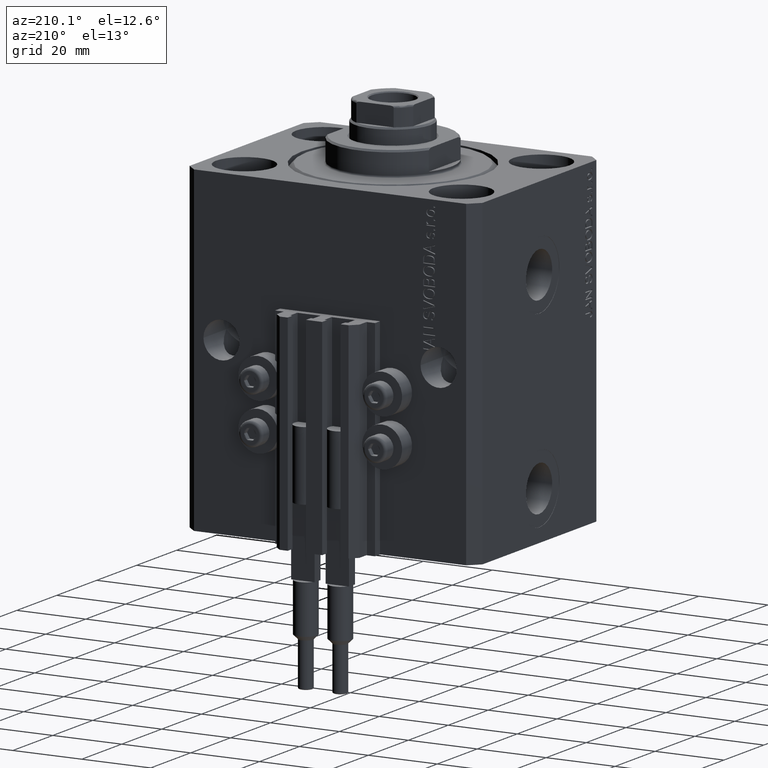
[diagram: clean part render]
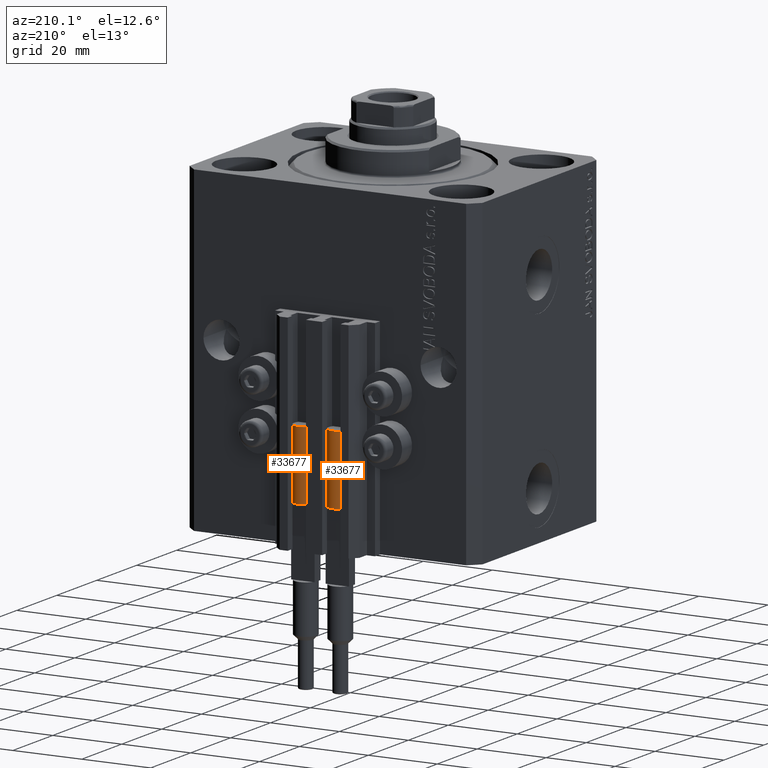
[diagram: same view with one multi-face feature highlighted, each face labeled with its STEP entity id]
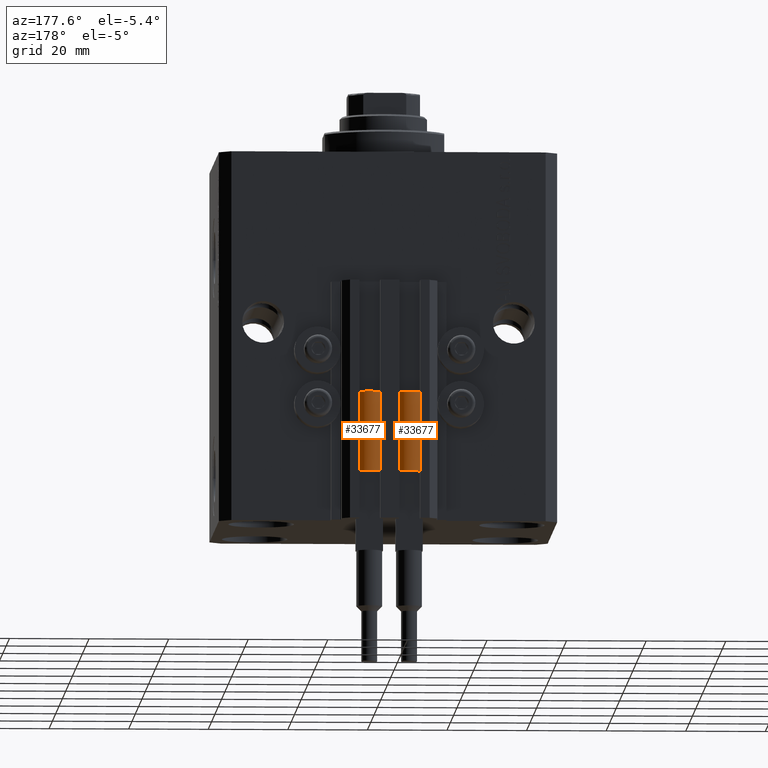
[diagram: same view with one multi-face feature highlighted, each face labeled with its STEP entity id]
A machine part, auxiliary view. The highlighted faces form ONE feature: a constant-radius fillet chain: 2 tangent blend faces with common blend radius 3.4 mm. The faces share edges in the B-rep.
A second angle (auxiliary view) of the same feature is appended — it is thin or edge-on in the first view.
Their STEP definitions:
[1] entity #33677 (Cylinder):
#1039 = DIRECTION ( 'NONE',  ( 1.000000000000000000, 0.000000000000000000, 0.000000000000000000 ) ) ;
#1324 = EDGE_CURVE ( 'NONE', #15781, #2618, #10314, .T. ) ;
#2573 = DIRECTION ( 'NONE',  ( 1.000000000000000000, 0.000000000000000000, 0.000000000000000000 ) ) ;
#2618 = VERTEX_POINT ( 'NONE', #33298 ) ;
#2791 = CARTESIAN_POINT ( 'NONE',  ( 3.051229260478471428, 1.500000000000000000, 20.00000000000000000 ) ) ;
#3567 = AXIS2_PLACEMENT_3D ( 'NONE', #43761, #40303, #47958 ) ;
#3773 = ORIENTED_EDGE ( 'NONE', *, *, #6563, .F. ) ;
#3987 = DIRECTION ( 'NONE',  ( 0.000000000000000000, 0.000000000000000000, 1.000000000000000000 ) ) ;
#6563 = EDGE_CURVE ( 'NONE', #34178, #27882, #40591, .T. ) ;
#7559 = LINE ( 'NONE', #18946, #7706 ) ;
#7706 = VECTOR ( 'NONE', #29836, 1000.000000000000000 ) ;
#10123 = AXIS2_PLACEMENT_3D ( 'NONE', #18164, #13957, #2573 ) ;
#10314 = LINE ( 'NONE', #25424, #12034 ) ;
#11687 = CARTESIAN_POINT ( 'NONE',  ( 0.000000000000000000, 0.000000000000000000, 20.00000000000000000 ) ) ;
#12034 = VECTOR ( 'NONE', #40528, 1000.000000000000000 ) ;
#12602 = VERTEX_POINT ( 'NONE', #46532 ) ;
#13957 = DIRECTION ( 'NONE',  ( 0.000000000000000000, 0.000000000000000000, 1.000000000000000000 ) ) ;
#14890 = DIRECTION ( 'NONE',  ( 1.000000000000000000, 0.000000000000000000, 0.000000000000000000 ) ) ;
#14911 = DIRECTION ( 'NONE',  ( 1.000000000000000000, 0.000000000000000000, 0.000000000000000000 ) ) ;
#15781 = VERTEX_POINT ( 'NONE', #46686 ) ;
#17171 = AXIS2_PLACEMENT_3D ( 'NONE', #34434, #3987, #14890 ) ;
#17188 = CIRCLE ( 'NONE', #22694, 3.400000000000000355 ) ;
#17221 = CIRCLE ( 'NONE', #10123, 3.400000000000000355 ) ;
#17414 = EDGE_CURVE ( 'NONE', #27882, #15781, #17221, .T. ) ;
#17589 = ORIENTED_EDGE ( 'NONE', *, *, #1324, .F. ) ;
#18164 = CARTESIAN_POINT ( 'NONE',  ( 0.000000000000000000, 0.000000000000000000, 20.00000000000000000 ) ) ;
#18946 = CARTESIAN_POINT ( 'NONE',  ( 3.400000000000000355, 4.163799117101001052E-16, 20.00000000000000000 ) ) ;
#19241 = AXIS2_PLACEMENT_3D ( 'NONE', #11687, #23062, #14911 ) ;
#19598 = EDGE_CURVE ( 'NONE', #20642, #2618, #17188, .T. ) ;
#20146 = EDGE_LOOP ( 'NONE', ( #35643, #25648, #25454, #17589, #35878, #3773 ) ) ;
#20642 = VERTEX_POINT ( 'NONE', #32517 ) ;
#22694 = AXIS2_PLACEMENT_3D ( 'NONE', #23069, #27280, #1039 ) ;
#23062 = DIRECTION ( 'NONE',  ( 0.000000000000000000, 0.000000000000000000, 1.000000000000000000 ) ) ;
#23069 = CARTESIAN_POINT ( 'NONE',  ( 0.000000000000000000, 0.000000000000000000, 0.000000000000000000 ) ) ;
#25424 = CARTESIAN_POINT ( 'NONE',  ( -3.400000000000000355, 0.000000000000000000, 20.00000000000000000 ) ) ;
#25454 = ORIENTED_EDGE ( 'NONE', *, *, #19598, .T. ) ;
#25648 = ORIENTED_EDGE ( 'NONE', *, *, #41748, .T. ) ;
#27280 = DIRECTION ( 'NONE',  ( 0.000000000000000000, 0.000000000000000000, 1.000000000000000000 ) ) ;
#27882 = VERTEX_POINT ( 'NONE', #36684 ) ;
#28171 = CYLINDRICAL_SURFACE ( 'NONE', #3567, 3.400000000000000355 ) ;
#29836 = DIRECTION ( 'NONE',  ( -0.000000000000000000, -0.000000000000000000, -1.000000000000000000 ) ) ;
#32517 = CARTESIAN_POINT ( 'NONE',  ( 3.400000000000000355, 4.163799117101001052E-16, 0.000000000000000000 ) ) ;
#33298 = CARTESIAN_POINT ( 'NONE',  ( -3.400000000000000355, 0.000000000000000000, 0.000000000000000000 ) ) ;
#33677 = ADVANCED_FACE ( 'NONE', ( #47230 ), #28171, .T. ) ;
#34178 = VERTEX_POINT ( 'NONE', #2791 ) ;
#34434 = CARTESIAN_POINT ( 'NONE',  ( 0.000000000000000000, 0.000000000000000000, 20.00000000000000000 ) ) ;
#35643 = ORIENTED_EDGE ( 'NONE', *, *, #37250, .F. ) ;
#35878 = ORIENTED_EDGE ( 'NONE', *, *, #17414, .F. ) ;
#36684 = CARTESIAN_POINT ( 'NONE',  ( -3.051229260478471428, 1.500000000000000000, 20.00000000000000000 ) ) ;
#37250 = EDGE_CURVE ( 'NONE', #12602, #34178, #42485, .T. ) ;
#40303 = DIRECTION ( 'NONE',  ( -0.000000000000000000, -0.000000000000000000, -1.000000000000000000 ) ) ;
#40528 = DIRECTION ( 'NONE',  ( -0.000000000000000000, -0.000000000000000000, -1.000000000000000000 ) ) ;
#40591 = CIRCLE ( 'NONE', #19241, 3.400000000000000355 ) ;
#41748 = EDGE_CURVE ( 'NONE', #12602, #20642, #7559, .T. ) ;
#42485 = CIRCLE ( 'NONE', #17171, 3.400000000000000355 ) ;
#43761 = CARTESIAN_POINT ( 'NONE',  ( 0.000000000000000000, 0.000000000000000000, 20.00000000000000000 ) ) ;
#46532 = CARTESIAN_POINT ( 'NONE',  ( 3.400000000000000355, 0.000000000000000000, 20.00000000000000000 ) ) ;
#46686 = CARTESIAN_POINT ( 'NONE',  ( -3.399999999999999467, -4.915049848600952119E-16, 20.00000000000000000 ) ) ;
#47230 = FACE_OUTER_BOUND ( 'NONE', #20146, .T. ) ;
#47958 = DIRECTION ( 'NONE',  ( -1.000000000000000000, 0.000000000000000000, 0.000000000000000000 ) ) ;
[2] entity #33677 (Cylinder):
#1039 = DIRECTION ( 'NONE',  ( 1.000000000000000000, 0.000000000000000000, 0.000000000000000000 ) ) ;
#1324 = EDGE_CURVE ( 'NONE', #15781, #2618, #10314, .T. ) ;
#2573 = DIRECTION ( 'NONE',  ( 1.000000000000000000, 0.000000000000000000, 0.000000000000000000 ) ) ;
#2618 = VERTEX_POINT ( 'NONE', #33298 ) ;
#2791 = CARTESIAN_POINT ( 'NONE',  ( 3.051229260478471428, 1.500000000000000000, 20.00000000000000000 ) ) ;
#3567 = AXIS2_PLACEMENT_3D ( 'NONE', #43761, #40303, #47958 ) ;
#3773 = ORIENTED_EDGE ( 'NONE', *, *, #6563, .F. ) ;
#3987 = DIRECTION ( 'NONE',  ( 0.000000000000000000, 0.000000000000000000, 1.000000000000000000 ) ) ;
#6563 = EDGE_CURVE ( 'NONE', #34178, #27882, #40591, .T. ) ;
#7559 = LINE ( 'NONE', #18946, #7706 ) ;
#7706 = VECTOR ( 'NONE', #29836, 1000.000000000000000 ) ;
#10123 = AXIS2_PLACEMENT_3D ( 'NONE', #18164, #13957, #2573 ) ;
#10314 = LINE ( 'NONE', #25424, #12034 ) ;
#11687 = CARTESIAN_POINT ( 'NONE',  ( 0.000000000000000000, 0.000000000000000000, 20.00000000000000000 ) ) ;
#12034 = VECTOR ( 'NONE', #40528, 1000.000000000000000 ) ;
#12602 = VERTEX_POINT ( 'NONE', #46532 ) ;
#13957 = DIRECTION ( 'NONE',  ( 0.000000000000000000, 0.000000000000000000, 1.000000000000000000 ) ) ;
#14890 = DIRECTION ( 'NONE',  ( 1.000000000000000000, 0.000000000000000000, 0.000000000000000000 ) ) ;
#14911 = DIRECTION ( 'NONE',  ( 1.000000000000000000, 0.000000000000000000, 0.000000000000000000 ) ) ;
#15781 = VERTEX_POINT ( 'NONE', #46686 ) ;
#17171 = AXIS2_PLACEMENT_3D ( 'NONE', #34434, #3987, #14890 ) ;
#17188 = CIRCLE ( 'NONE', #22694, 3.400000000000000355 ) ;
#17221 = CIRCLE ( 'NONE', #10123, 3.400000000000000355 ) ;
#17414 = EDGE_CURVE ( 'NONE', #27882, #15781, #17221, .T. ) ;
#17589 = ORIENTED_EDGE ( 'NONE', *, *, #1324, .F. ) ;
#18164 = CARTESIAN_POINT ( 'NONE',  ( 0.000000000000000000, 0.000000000000000000, 20.00000000000000000 ) ) ;
#18946 = CARTESIAN_POINT ( 'NONE',  ( 3.400000000000000355, 4.163799117101001052E-16, 20.00000000000000000 ) ) ;
#19241 = AXIS2_PLACEMENT_3D ( 'NONE', #11687, #23062, #14911 ) ;
#19598 = EDGE_CURVE ( 'NONE', #20642, #2618, #17188, .T. ) ;
#20146 = EDGE_LOOP ( 'NONE', ( #35643, #25648, #25454, #17589, #35878, #3773 ) ) ;
#20642 = VERTEX_POINT ( 'NONE', #32517 ) ;
#22694 = AXIS2_PLACEMENT_3D ( 'NONE', #23069, #27280, #1039 ) ;
#23062 = DIRECTION ( 'NONE',  ( 0.000000000000000000, 0.000000000000000000, 1.000000000000000000 ) ) ;
#23069 = CARTESIAN_POINT ( 'NONE',  ( 0.000000000000000000, 0.000000000000000000, 0.000000000000000000 ) ) ;
#25424 = CARTESIAN_POINT ( 'NONE',  ( -3.400000000000000355, 0.000000000000000000, 20.00000000000000000 ) ) ;
#25454 = ORIENTED_EDGE ( 'NONE', *, *, #19598, .T. ) ;
#25648 = ORIENTED_EDGE ( 'NONE', *, *, #41748, .T. ) ;
#27280 = DIRECTION ( 'NONE',  ( 0.000000000000000000, 0.000000000000000000, 1.000000000000000000 ) ) ;
#27882 = VERTEX_POINT ( 'NONE', #36684 ) ;
#28171 = CYLINDRICAL_SURFACE ( 'NONE', #3567, 3.400000000000000355 ) ;
#29836 = DIRECTION ( 'NONE',  ( -0.000000000000000000, -0.000000000000000000, -1.000000000000000000 ) ) ;
#32517 = CARTESIAN_POINT ( 'NONE',  ( 3.400000000000000355, 4.163799117101001052E-16, 0.000000000000000000 ) ) ;
#33298 = CARTESIAN_POINT ( 'NONE',  ( -3.400000000000000355, 0.000000000000000000, 0.000000000000000000 ) ) ;
#33677 = ADVANCED_FACE ( 'NONE', ( #47230 ), #28171, .T. ) ;
#34178 = VERTEX_POINT ( 'NONE', #2791 ) ;
#34434 = CARTESIAN_POINT ( 'NONE',  ( 0.000000000000000000, 0.000000000000000000, 20.00000000000000000 ) ) ;
#35643 = ORIENTED_EDGE ( 'NONE', *, *, #37250, .F. ) ;
#35878 = ORIENTED_EDGE ( 'NONE', *, *, #17414, .F. ) ;
#36684 = CARTESIAN_POINT ( 'NONE',  ( -3.051229260478471428, 1.500000000000000000, 20.00000000000000000 ) ) ;
#37250 = EDGE_CURVE ( 'NONE', #12602, #34178, #42485, .T. ) ;
#40303 = DIRECTION ( 'NONE',  ( -0.000000000000000000, -0.000000000000000000, -1.000000000000000000 ) ) ;
#40528 = DIRECTION ( 'NONE',  ( -0.000000000000000000, -0.000000000000000000, -1.000000000000000000 ) ) ;
#40591 = CIRCLE ( 'NONE', #19241, 3.400000000000000355 ) ;
#41748 = EDGE_CURVE ( 'NONE', #12602, #20642, #7559, .T. ) ;
#42485 = CIRCLE ( 'NONE', #17171, 3.400000000000000355 ) ;
#43761 = CARTESIAN_POINT ( 'NONE',  ( 0.000000000000000000, 0.000000000000000000, 20.00000000000000000 ) ) ;
#46532 = CARTESIAN_POINT ( 'NONE',  ( 3.400000000000000355, 0.000000000000000000, 20.00000000000000000 ) ) ;
#46686 = CARTESIAN_POINT ( 'NONE',  ( -3.399999999999999467, -4.915049848600952119E-16, 20.00000000000000000 ) ) ;
#47230 = FACE_OUTER_BOUND ( 'NONE', #20146, .T. ) ;
#47958 = DIRECTION ( 'NONE',  ( -1.000000000000000000, 0.000000000000000000, 0.000000000000000000 ) ) ;